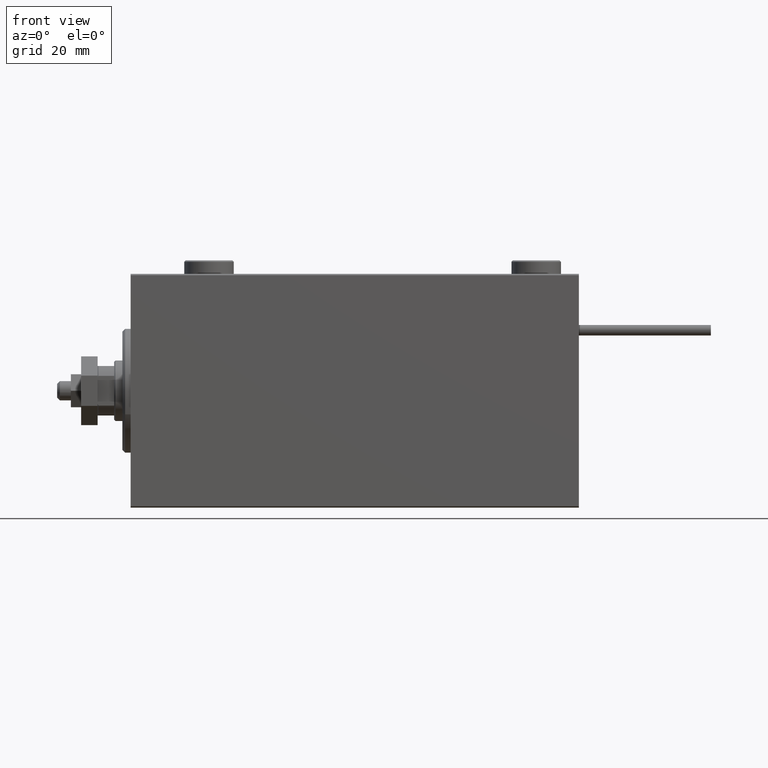
[diagram: clean part render]
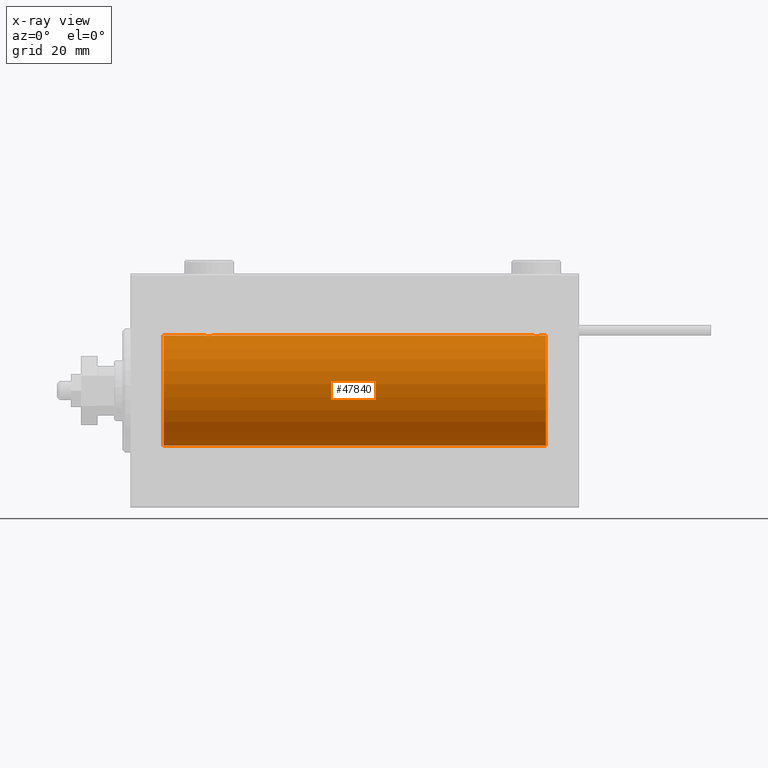
[diagram: x-ray — body ghosted, one internal face saturated and labeled with its STEP entity id]
A machine part, front view, then the same camera in x-ray: the body is ghosted and one INTERNAL B-rep face — a face not visible from any outside direction — is saturated and labeled: STEP entity #47840.
In plain terms, the highlighted cylindrical surface (partial cylindrical patch) has radius 20 mm, axis along (-1, -0, -0).
Its self-contained STEP definition (entity closure, byte-faithful):
#82 = CARTESIAN_POINT ( 'NONE',  ( 149.5000000000000284, -0.2610801504281899388, -19.99999999999999645 ) ) ;
#336 = CARTESIAN_POINT ( 'NONE',  ( 145.5000000000000853, -0.2644051013331212840, -20.00000000000000000 ) ) ;
#344 = CARTESIAN_POINT ( 'NONE',  ( 146.4969344366039934, -1.735203193119901455, 19.92471783160911158 ) ) ;
#347 = ORIENTED_EDGE ( 'NONE', *, *, #24758, .T. ) ;
#864 = CARTESIAN_POINT ( 'NONE',  ( 145.5524493711749869, -0.5243189001515030645, 19.99457699142850231 ) ) ;
#1109 = CARTESIAN_POINT ( 'NONE',  ( 149.5000000000000284, 2.449293582762473501E-15, -20.00000000000000000 ) ) ;
#1118 = CARTESIAN_POINT ( 'NONE',  ( 145.5000000000000568, -0.2610801504281917151, 20.00000000000000000 ) ) ;
#2348 = CARTESIAN_POINT ( 'NONE',  ( 30.50000000000000000, -9.453669475664189070E-16, 20.00000000000000000 ) ) ;
#2459 = EDGE_CURVE ( 'NONE', #35877, #26373, #29281, .T. ) ;
#2502 = ORIENTED_EDGE ( 'NONE', *, *, #29895, .T. ) ;
#2725 = CARTESIAN_POINT ( 'NONE',  ( 26.75174086539980678, -1.005710574260844092, 19.97614991974273835 ) ) ;
#2983 = CARTESIAN_POINT ( 'NONE',  ( 29.50067219139245367, -1.736582545981377734, 19.92459705242981371 ) ) ;
#3238 = CARTESIAN_POINT ( 'NONE',  ( 29.14348528733042443, -1.898187925611342974, 19.90978194174746818 ) ) ;
#4231 = CARTESIAN_POINT ( 'NONE',  ( 146.1790309315271372, -1.507328959728508666, -19.94333197382385947 ) ) ;
#4330 = DIRECTION ( 'NONE',  ( -1.000000000000000000, 0.000000000000000000, 0.000000000000000000 ) ) ;
#4495 = CARTESIAN_POINT ( 'NONE',  ( 146.2797105420553692, -1.589957321664216661, 19.93683391378736403 ) ) ;
#4764 = LINE ( 'NONE', #44671, #27440 ) ;
#4850 = ORIENTED_EDGE ( 'NONE', *, *, #32956, .F. ) ;
#4915 = AXIS2_PLACEMENT_3D ( 'NONE', #11994, #19049, #15141 ) ;
#5001 = CARTESIAN_POINT ( 'NONE',  ( 148.1463067392464552, -1.897222639860608906, -19.90987429971496070 ) ) ;
#5035 = DIRECTION ( 'NONE',  ( -1.000000000000000000, -0.000000000000000000, -0.000000000000000000 ) ) ;
#5630 = LINE ( 'NONE', #48678, #22607 ) ;
#5667 = CARTESIAN_POINT ( 'NONE',  ( 26.50000000000000711, -0.2644051013331055744, -19.99999999999999645 ) ) ;
#6154 = EDGE_CURVE ( 'NONE', #16546, #43886, #5630, .T. ) ;
#6640 = VERTEX_POINT ( 'NONE', #47535 ) ;
#6938 = VERTEX_POINT ( 'NONE', #50804 ) ;
#7222 = ORIENTED_EDGE ( 'NONE', *, *, #23415, .F. ) ;
#8041 = CARTESIAN_POINT ( 'NONE',  ( 30.50000000000000000, -0.2610801504281901053, -20.00000000000000000 ) ) ;
#8080 = VERTEX_POINT ( 'NONE', #12525 ) ;
#8140 = CARTESIAN_POINT ( 'NONE',  ( 146.6142092332927405, -1.797933656607938691, -19.91908554465557657 ) ) ;
#8409 = CARTESIAN_POINT ( 'NONE',  ( 146.1769333108053672, -1.505486175075782196, 19.94347168299868045 ) ) ;
#8556 = CARTESIAN_POINT ( 'NONE',  ( 28.76358144091414815, -1.986835489085816198, -19.90108393514801222 ) ) ;
#9789 = ORIENTED_EDGE ( 'NONE', *, *, #44115, .T. ) ;
#9826 = CARTESIAN_POINT ( 'NONE',  ( 27.98351467081095123, -1.936551476643008529, -19.90603968831098314 ) ) ;
#10543 = CARTESIAN_POINT ( 'NONE',  ( 26.90058475115969827, -1.228758402364238833, 19.96307487248084911 ) ) ;
#10791 = DIRECTION ( 'NONE',  ( 0.000000000000000000, 0.000000000000000000, 1.000000000000000000 ) ) ;
#11058 = FACE_OUTER_BOUND ( 'NONE', #28142, .T. ) ;
#11068 = CARTESIAN_POINT ( 'NONE',  ( 30.09774691554730808, -1.230936344679279593, 19.96293863536309487 ) ) ;
#11808 = DIRECTION ( 'NONE',  ( -1.000000000000000000, -0.000000000000000000, -0.000000000000000000 ) ) ;
#11994 = CARTESIAN_POINT ( 'NONE',  ( 12.00000000000001066, 0.000000000000000000, 0.000000000000000000 ) ) ;
#12525 = CARTESIAN_POINT ( 'NONE',  ( 26.50000000000000355, -1.552596590610734385E-23, 20.00000000000000000 ) ) ;
#12586 = CARTESIAN_POINT ( 'NONE',  ( 147.2364185590859620, -1.986835489085821527, 19.90108393514801932 ) ) ;
#12600 = DIRECTION ( 'NONE',  ( -1.000000000000000000, -0.000000000000000000, -0.000000000000000000 ) ) ;
#12740 = CARTESIAN_POINT ( 'NONE',  ( 29.72028945794465216, -1.589957321664210665, -19.93683391378736047 ) ) ;
#13097 = CARTESIAN_POINT ( 'NONE',  ( 149.0994152488403586, -1.228758402364252822, -19.96307487248083845 ) ) ;
#13106 = CARTESIAN_POINT ( 'NONE',  ( 149.5000000000000853, -0.2644051013331001343, 20.00000000000000711 ) ) ;
#13445 = VECTOR ( 'NONE', #35058, 1000.000000000000000 ) ;
#13507 = CARTESIAN_POINT ( 'NONE',  ( 28.36941128289166514, -2.000100592782555697, -19.89973863218036598 ) ) ;
#14205 = CARTESIAN_POINT ( 'NONE',  ( 29.38579076670728440, -1.797933656607920261, 19.91908554465558367 ) ) ;
#14470 = CARTESIAN_POINT ( 'NONE',  ( 149.5000000000000284, 6.438096668033870730E-15, 20.00000000000000000 ) ) ;
#14722 = CARTESIAN_POINT ( 'NONE',  ( 29.82096906847290896, -1.507328959728495121, 19.94333197382386302 ) ) ;
#15067 = B_SPLINE_CURVE_WITH_KNOTS ( 'NONE', 3,
 ( #20294, #8041, #40109, #36210, #16128, #16385, #12740, #44295, #28634, #32290, #28381, #8556, #24735, #13507, #45823, #9826, #29652, #29401, #29905, #37231, #17664, #49231, #25740, #45318, #5667, #21575 ),
 .UNSPECIFIED., .F., .F.,
 ( 4, 2, 2, 2, 2, 2, 2, 2, 2, 2, 2, 2, 4 ),
 ( 0.006256819553329837948, 0.007038738568778813223, 0.007820657584227789366, 0.008211617091952273101, 0.008602576599676756836, 0.008993536107401240570, 0.009384495615125724305, 0.009775455122850208040, 0.01016641463057469177, 0.01055737413829917551, 0.01094833364602365924, 0.01173025266147262498, 0.01251217167692159245 ),
 .UNSPECIFIED. ) ;
#15141 = DIRECTION ( 'NONE',  ( 0.000000000000000000, 0.000000000000000000, 1.000000000000000000 ) ) ;
#15964 = CARTESIAN_POINT ( 'NONE',  ( 147.3694112828916332, -2.000100592782568576, -19.89973863218036243 ) ) ;
#16128 = CARTESIAN_POINT ( 'NONE',  ( 30.09941524884030528, -1.228758402364235724, -19.96307487248084911 ) ) ;
#16221 = CARTESIAN_POINT ( 'NONE',  ( 145.5000000000000284, -1.510525576716094838E-14, -20.00000000000000000 ) ) ;
#16230 = CARTESIAN_POINT ( 'NONE',  ( 148.0164853291890950, -1.936551476643003200, 19.90603968831099024 ) ) ;
#16385 = CARTESIAN_POINT ( 'NONE',  ( 29.82306668919470027, -1.505486175075773314, -19.94347168299866979 ) ) ;
#16546 = VERTEX_POINT ( 'NONE', #21448 ) ;
#16583 = ORIENTED_EDGE ( 'NONE', *, *, #2459, .T. ) ;
#16599 = DIRECTION ( 'NONE',  ( -1.000000000000000000, -0.000000000000000000, -0.000000000000000000 ) ) ;
#16746 = CARTESIAN_POINT ( 'NONE',  ( 146.6117056279291262, -1.796691196322318218, 19.91919800395357143 ) ) ;
#17008 = CARTESIAN_POINT ( 'NONE',  ( 145.9005847511597835, -1.228758402364247049, 19.96307487248084911 ) ) ;
#17664 = CARTESIAN_POINT ( 'NONE',  ( 27.17903093152711591, -1.507328959728495787, -19.94333197382386302 ) ) ;
#18114 = CARTESIAN_POINT ( 'NONE',  ( 26.50000000000001421, -0.2610801504281932695, 20.00000000000000000 ) ) ;
#18187 = VERTEX_POINT ( 'NONE', #14470 ) ;
#18367 = CARTESIAN_POINT ( 'NONE',  ( 26.55244937117491943, -0.5243189001515041747, 19.99457699142850231 ) ) ;
#19049 = DIRECTION ( 'NONE',  ( -1.000000000000000000, 0.000000000000000000, 0.000000000000000000 ) ) ;
#19818 = CARTESIAN_POINT ( 'NONE',  ( 151.0000000000000000, 0.000000000000000000, 20.00000000000000000 ) ) ;
#19855 = CARTESIAN_POINT ( 'NONE',  ( 145.5000000000000284, -1.510525576716094838E-14, -20.00000000000000000 ) ) ;
#19876 = CARTESIAN_POINT ( 'NONE',  ( 148.8230666891947465, -1.505486175075791966, -19.94347168299867690 ) ) ;
#19884 = CARTESIAN_POINT ( 'NONE',  ( 148.3857907667072595, -1.797933656607917152, 19.91908554465558367 ) ) ;
#20129 = CARTESIAN_POINT ( 'NONE',  ( 145.9022530844526955, -1.230936344679295136, -19.96293863536308422 ) ) ;
#20139 = CARTESIAN_POINT ( 'NONE',  ( 145.5000000000000284, -1.553188236289650144E-23, 20.00000000000000000 ) ) ;
#20294 = CARTESIAN_POINT ( 'NONE',  ( 30.50000000000000000, 2.449293582768389958E-15, -20.00000000000000000 ) ) ;
#20598 = EDGE_CURVE ( 'NONE', #6938, #18187, #44521, .T. ) ;
#20909 = CARTESIAN_POINT ( 'NONE',  ( 148.0192351213528070, -1.935816449315140408, -19.90611141657402072 ) ) ;
#20918 = CARTESIAN_POINT ( 'NONE',  ( 148.5006721913924252, -1.736582545981380177, 19.92459705242980661 ) ) ;
#20946 = CARTESIAN_POINT ( 'NONE',  ( 151.0000000000000000, 2.449293598294706513E-15, -20.00000000000000000 ) ) ;
#21448 = CARTESIAN_POINT ( 'NONE',  ( 151.0000000000000000, 2.449293598294706513E-15, -20.00000000000000000 ) ) ;
#21575 = CARTESIAN_POINT ( 'NONE',  ( 26.50000000000000355, -6.257798774011376898E-15, -20.00000000000000000 ) ) ;
#22023 = CARTESIAN_POINT ( 'NONE',  ( 27.17693331080529973, -1.505486175075776645, 19.94347168299866979 ) ) ;
#22487 = CIRCLE ( 'NONE', #25800, 20.00000000000000000 ) ;
#22607 = VECTOR ( 'NONE', #16599, 1000.000000000000000 ) ;
#23322 = CARTESIAN_POINT ( 'NONE',  ( 151.0000000000000000, 0.000000000000000000, 20.00000000000000000 ) ) ;
#23415 = EDGE_CURVE ( 'NONE', #6640, #18187, #27642, .T. ) ;
#23772 = B_SPLINE_CURVE_WITH_KNOTS ( 'NONE', 3,
 ( #1109, #82, #24314, #24830, #13097, #19876, #32388, #40730, #28988, #5001, #20909, #35781, #48302, #15964, #31869, #27960, #47790, #8140, #24054, #39954, #4231, #20129, #36043, #28218, #336, #16221 ),
 .UNSPECIFIED., .F., .F.,
 ( 4, 2, 2, 2, 2, 2, 2, 2, 2, 2, 2, 2, 4 ),
 ( 0.006256819553329819733, 0.007038738568778733426, 0.007820657584227647119, 0.008211617091952132588, 0.008602576599676618058, 0.008993536107401105262, 0.009384495615125590731, 0.009775455122850077935, 0.01016641463057456340, 0.01055737413829905061, 0.01094833364602353781, 0.01173025266147256773, 0.01251217167692160112 ),
 .UNSPECIFIED. ) ;
#23881 = CARTESIAN_POINT ( 'NONE',  ( 12.00000000000001066, 2.449293598294706513E-15, -20.00000000000000000 ) ) ;
#23994 = DIRECTION ( 'NONE',  ( -1.000000000000000000, -0.000000000000000000, -0.000000000000000000 ) ) ;
#24054 = CARTESIAN_POINT ( 'NONE',  ( 146.4993278086076600, -1.736582545981393277, -19.92459705242980661 ) ) ;
#24314 = CARTESIAN_POINT ( 'NONE',  ( 149.4475506288250699, -0.5243189001515055070, -19.99457699142850231 ) ) ;
#24583 = CARTESIAN_POINT ( 'NONE',  ( 147.3663480385754951, -1.999898234284065657, 19.89975896996866211 ) ) ;
#24735 = CARTESIAN_POINT ( 'NONE',  ( 28.63365196142447644, -1.999898234284065657, -19.89975896996865856 ) ) ;
#24758 = EDGE_CURVE ( 'NONE', #43886, #37817, #23772, .T. ) ;
#24830 = CARTESIAN_POINT ( 'NONE',  ( 149.2482591346002039, -1.005710574260847645, -19.97614991974274190 ) ) ;
#25381 = AXIS2_PLACEMENT_3D ( 'NONE', #30348, #27221, #10791 ) ;
#25740 = CARTESIAN_POINT ( 'NONE',  ( 26.75313023696928738, -1.008108445278691478, -19.97602680192586533 ) ) ;
#25800 = AXIS2_PLACEMENT_3D ( 'NONE', #27806, #4330, #28580 ) ;
#25942 = CARTESIAN_POINT ( 'NONE',  ( 28.63058871710834552, -2.000100592782559250, 19.89973863218036598 ) ) ;
#26373 = VERTEX_POINT ( 'NONE', #23881 ) ;
#26453 = CARTESIAN_POINT ( 'NONE',  ( 29.71805419472152110, -1.591668229360197806, 19.93669678979812687 ) ) ;
#26710 = CARTESIAN_POINT ( 'NONE',  ( 28.36634803857551290, -1.999898234284068321, 19.89975896996865856 ) ) ;
#26977 = CARTESIAN_POINT ( 'NONE',  ( 30.44679484191798124, -0.5270924491156695479, 19.99450181871975829 ) ) ;
#27221 = DIRECTION ( 'NONE',  ( -1.000000000000000000, -0.000000000000000000, -0.000000000000000000 ) ) ;
#27440 = VECTOR ( 'NONE', #12600, 1000.000000000000000 ) ;
#27642 = LINE ( 'NONE', #19818, #43904 ) ;
#27688 = EDGE_CURVE ( 'NONE', #26373, #41825, #42368, .T. ) ;
#27806 = CARTESIAN_POINT ( 'NONE',  ( 151.0000000000000000, 0.000000000000000000, 0.000000000000000000 ) ) ;
#27960 = CARTESIAN_POINT ( 'NONE',  ( 146.9835146708108766, -1.936551476643014080, -19.90603968831098669 ) ) ;
#28142 = EDGE_LOOP ( 'NONE', ( #4850, #35215, #347, #2502, #33291, #16583, #37448, #49576, #9789, #49102, #44847, #7222 ) ) ;
#28218 = CARTESIAN_POINT ( 'NONE',  ( 145.5532051580820507, -0.5270924491156762093, -19.99450181871976184 ) ) ;
#28227 = CARTESIAN_POINT ( 'NONE',  ( 149.4467948419180345, -0.5270924491156583347, 19.99450181871976184 ) ) ;
#28381 = CARTESIAN_POINT ( 'NONE',  ( 29.01923512135277150, -1.935816449315127308, -19.90611141657401362 ) ) ;
#28494 = CARTESIAN_POINT ( 'NONE',  ( 148.8209690684728912, -1.507328959728495121, 19.94333197382385592 ) ) ;
#28580 = DIRECTION ( 'NONE',  ( 0.000000000000000000, 0.000000000000000000, 1.000000000000000000 ) ) ;
#28634 = CARTESIAN_POINT ( 'NONE',  ( 29.38829437207092354, -1.796691196322319994, -19.91919800395357498 ) ) ;
#28988 = CARTESIAN_POINT ( 'NONE',  ( 148.3882943720709306, -1.796691196322330653, -19.91919800395357143 ) ) ;
#29281 = LINE ( 'NONE', #20946, #49029 ) ;
#29401 = CARTESIAN_POINT ( 'NONE',  ( 27.61420923329272981, -1.797933656607920039, -19.91908554465558367 ) ) ;
#29652 = CARTESIAN_POINT ( 'NONE',  ( 27.85651471266958978, -1.898187925611340976, -19.90978194174746818 ) ) ;
#29895 = EDGE_CURVE ( 'NONE', #37817, #39364, #42856, .T. ) ;
#29905 = CARTESIAN_POINT ( 'NONE',  ( 27.49932780860757475, -1.736582545981378845, -19.92459705242981371 ) ) ;
#30101 = CARTESIAN_POINT ( 'NONE',  ( 30.24686976303072328, -1.008108445278688148, 19.97602680192586533 ) ) ;
#30348 = CARTESIAN_POINT ( 'NONE',  ( 151.0000000000000000, 0.000000000000000000, 0.000000000000000000 ) ) ;
#30358 = CARTESIAN_POINT ( 'NONE',  ( 27.49693443660398273, -1.735203193119900344, 19.92471783160911158 ) ) ;
#31069 = CARTESIAN_POINT ( 'NONE',  ( 26.50000000000000355, -6.257798774011376898E-15, -20.00000000000000000 ) ) ;
#31103 = EDGE_CURVE ( 'NONE', #8080, #41825, #4764, .T. ) ;
#31660 = LINE ( 'NONE', #23322, #13445 ) ;
#31869 = CARTESIAN_POINT ( 'NONE',  ( 147.2392274396843277, -1.987205673487821178, -19.90104673894210308 ) ) ;
#32290 = CARTESIAN_POINT ( 'NONE',  ( 29.14630673924644100, -1.897222639860597360, -19.90987429971497136 ) ) ;
#32388 = CARTESIAN_POINT ( 'NONE',  ( 148.7202894579446877, -1.589957321664208001, -19.93683391378736403 ) ) ;
#32399 = CARTESIAN_POINT ( 'NONE',  ( 145.7517408653998245, -1.005710574260844758, 19.97614991974274190 ) ) ;
#32658 = CARTESIAN_POINT ( 'NONE',  ( 147.7607725603157576, -1.987205673487809854, 19.90104673894210308 ) ) ;
#32919 = CARTESIAN_POINT ( 'NONE',  ( 148.1434852873304635, -1.898187925611338978, 19.90978194174746818 ) ) ;
#32956 = EDGE_CURVE ( 'NONE', #16546, #6640, #22487, .T. ) ;
#33291 = ORIENTED_EDGE ( 'NONE', *, *, #43733, .T. ) ;
#34013 = CARTESIAN_POINT ( 'NONE',  ( 26.50000000000000355, -1.552596590610734385E-23, 20.00000000000000000 ) ) ;
#34271 = CARTESIAN_POINT ( 'NONE',  ( 27.61170562792909777, -1.796691196322324213, 19.91919800395357498 ) ) ;
#34304 = VERTEX_POINT ( 'NONE', #2348 ) ;
#34507 = CARTESIAN_POINT ( 'NONE',  ( 151.0000000000000000, 2.449293598294706513E-15, -20.00000000000000000 ) ) ;
#34532 = CARTESIAN_POINT ( 'NONE',  ( 28.76077256031568652, -1.987205673487814739, 19.90104673894211018 ) ) ;
#34907 = CARTESIAN_POINT ( 'NONE',  ( 12.00000000000001066, 0.000000000000000000, 20.00000000000000000 ) ) ;
#34961 = VECTOR ( 'NONE', #11808, 1000.000000000000000 ) ;
#35058 = DIRECTION ( 'NONE',  ( -1.000000000000000000, -0.000000000000000000, -0.000000000000000000 ) ) ;
#35215 = ORIENTED_EDGE ( 'NONE', *, *, #6154, .T. ) ;
#35781 = CARTESIAN_POINT ( 'NONE',  ( 147.7635814409141517, -1.986835489085827966, -19.90108393514800511 ) ) ;
#35875 = CARTESIAN_POINT ( 'NONE',  ( 149.5000000000000284, 2.449293582762473501E-15, -20.00000000000000000 ) ) ;
#35877 = VERTEX_POINT ( 'NONE', #31069 ) ;
#36043 = CARTESIAN_POINT ( 'NONE',  ( 145.7531302369693265, -1.008108445278692589, -19.97602680192585822 ) ) ;
#36210 = CARTESIAN_POINT ( 'NONE',  ( 30.24825913460018256, -1.005710574260840096, -19.97614991974273835 ) ) ;
#36317 = CARTESIAN_POINT ( 'NONE',  ( 149.2468697630307872, -1.008108445278674825, 19.97602680192586888 ) ) ;
#36833 = CARTESIAN_POINT ( 'NONE',  ( 147.6305887171084237, -2.000100592782557474, 19.89973863218036243 ) ) ;
#37231 = CARTESIAN_POINT ( 'NONE',  ( 27.28194580527850022, -1.591668229360200026, -19.93669678979812687 ) ) ;
#37448 = ORIENTED_EDGE ( 'NONE', *, *, #27688, .T. ) ;
#37477 = CYLINDRICAL_SURFACE ( 'NONE', #25381, 20.00000000000000000 ) ;
#37817 = VERTEX_POINT ( 'NONE', #19855 ) ;
#39338 = EDGE_CURVE ( 'NONE', #6938, #34304, #31660, .T. ) ;
#39364 = VERTEX_POINT ( 'NONE', #51226 ) ;
#39954 = CARTESIAN_POINT ( 'NONE',  ( 146.2819458052784682, -1.591668229360214903, -19.93669678979811977 ) ) ;
#40109 = CARTESIAN_POINT ( 'NONE',  ( 30.44755062882508412, -0.5243189001515006220, -19.99457699142850231 ) ) ;
#40223 = CARTESIAN_POINT ( 'NONE',  ( 146.8536932607536016, -1.897222639860597360, 19.90987429971496780 ) ) ;
#40730 = CARTESIAN_POINT ( 'NONE',  ( 148.5030655633960066, -1.735203193119897014, -19.92471783160911158 ) ) ;
#41825 = VERTEX_POINT ( 'NONE', #34907 ) ;
#42365 = CARTESIAN_POINT ( 'NONE',  ( 27.27971054205535495, -1.589957321664213552, 19.93683391378736047 ) ) ;
#42368 = CIRCLE ( 'NONE', #4915, 20.00000000000000000 ) ;
#42623 = CARTESIAN_POINT ( 'NONE',  ( 30.50000000000000000, -9.453669475664189070E-16, 20.00000000000000000 ) ) ;
#42856 = LINE ( 'NONE', #34507, #34961 ) ;
#43623 = CARTESIAN_POINT ( 'NONE',  ( 149.5000000000000284, 6.438096668033870730E-15, 20.00000000000000000 ) ) ;
#43699 = B_SPLINE_CURVE_WITH_KNOTS ( 'NONE', 3,
 ( #34013, #18114, #18367, #2725, #10543, #22023, #42365, #30358, #34271, #46800, #45765, #50955, #26710, #25942, #34532, #50443, #3238, #14205, #2983, #26453, #14722, #11068, #30101, #26977, #46534, #42623 ),
 .UNSPECIFIED., .F., .F.,
 ( 4, 2, 2, 2, 2, 2, 2, 2, 2, 2, 2, 2, 4 ),
 ( 0.006256819553329818866, 0.007038738568778795009, 0.007820657584227770284, 0.008211617091952255754, 0.008602576599676739488, 0.008993536107401223223, 0.009384495615125706958, 0.009775455122850190692, 0.01016641463057467443, 0.01055737413829915816, 0.01094833364602364190, 0.01173025266147261110, 0.01251217167692157857 ),
 .UNSPECIFIED. ) ;
#43733 = EDGE_CURVE ( 'NONE', #39364, #35877, #15067, .T. ) ;
#43886 = VERTEX_POINT ( 'NONE', #35875 ) ;
#43904 = VECTOR ( 'NONE', #23994, 1000.000000000000000 ) ;
#44115 = EDGE_CURVE ( 'NONE', #8080, #34304, #43699, .T. ) ;
#44295 = CARTESIAN_POINT ( 'NONE',  ( 29.50306556339602082, -1.735203193119896348, -19.92471783160911158 ) ) ;
#44521 = B_SPLINE_CURVE_WITH_KNOTS ( 'NONE', 3,
 ( #20139, #1118, #864, #32399, #17008, #8409, #4495, #344, #16746, #40223, #48310, #12586, #24583, #36833, #32658, #16230, #32919, #19884, #20918, #48572, #28494, #48826, #36317, #28227, #13106, #43623 ),
 .UNSPECIFIED., .F., .F.,
 ( 4, 2, 2, 2, 2, 2, 2, 2, 2, 2, 2, 2, 4 ),
 ( 0.006256819553329832743, 0.007038738568778792407, 0.007820657584227751202, 0.008211617091952231468, 0.008602576599676711733, 0.008993536107401190263, 0.009384495615125668794, 0.009775455122850149059, 0.01016641463057462759, 0.01055737413829910612, 0.01094833364602358639, 0.01173025266147260243, 0.01251217167692161847 ),
 .UNSPECIFIED. ) ;
#44671 = CARTESIAN_POINT ( 'NONE',  ( 151.0000000000000000, 0.000000000000000000, 20.00000000000000000 ) ) ;
#44847 = ORIENTED_EDGE ( 'NONE', *, *, #20598, .T. ) ;
#45318 = CARTESIAN_POINT ( 'NONE',  ( 26.55320515808203297, -0.5270924491156746550, -19.99450181871975829 ) ) ;
#45765 = CARTESIAN_POINT ( 'NONE',  ( 27.98076487864723561, -1.935816449315131749, 19.90611141657401362 ) ) ;
#45823 = CARTESIAN_POINT ( 'NONE',  ( 28.23922743968432414, -1.987205673487811630, -19.90104673894211018 ) ) ;
#46534 = CARTESIAN_POINT ( 'NONE',  ( 30.50000000000000000, -0.2644051013330992461, 19.99999999999999645 ) ) ;
#46800 = CARTESIAN_POINT ( 'NONE',  ( 27.85369326075355190, -1.897222639860601578, 19.90987429971495715 ) ) ;
#47535 = CARTESIAN_POINT ( 'NONE',  ( 151.0000000000000000, 0.000000000000000000, 20.00000000000000000 ) ) ;
#47790 = CARTESIAN_POINT ( 'NONE',  ( 146.8565147126696218, -1.898187925611359850, -19.90978194174746463 ) ) ;
#47840 = ADVANCED_FACE ( 'NONE', ( #11058 ), #37477, .F. ) ;
#48302 = CARTESIAN_POINT ( 'NONE',  ( 147.6336519614245617, -1.999898234284076981, -19.89975896996866211 ) ) ;
#48310 = CARTESIAN_POINT ( 'NONE',  ( 146.9807648786472782, -1.935816449315135523, 19.90611141657401006 ) ) ;
#48572 = CARTESIAN_POINT ( 'NONE',  ( 148.7180541947215602, -1.591668229360202025, 19.93669678979812332 ) ) ;
#48678 = CARTESIAN_POINT ( 'NONE',  ( 151.0000000000000000, 2.449293598294706513E-15, -20.00000000000000000 ) ) ;
#48826 = CARTESIAN_POINT ( 'NONE',  ( 149.0977469155473045, -1.230936344679282257, 19.96293863536309843 ) ) ;
#49029 = VECTOR ( 'NONE', #5035, 1000.000000000000000 ) ;
#49102 = ORIENTED_EDGE ( 'NONE', *, *, #39338, .F. ) ;
#49231 = CARTESIAN_POINT ( 'NONE',  ( 26.90225308445270613, -1.230936344679281369, -19.96293863536309487 ) ) ;
#49576 = ORIENTED_EDGE ( 'NONE', *, *, #31103, .F. ) ;
#50443 = CARTESIAN_POINT ( 'NONE',  ( 29.01648532918905232, -1.936551476643010528, 19.90603968831098314 ) ) ;
#50804 = CARTESIAN_POINT ( 'NONE',  ( 145.5000000000000284, -1.553188236289650144E-23, 20.00000000000000000 ) ) ;
#50955 = CARTESIAN_POINT ( 'NONE',  ( 28.23641855908585541, -1.986835489085820194, 19.90108393514801222 ) ) ;
#51226 = CARTESIAN_POINT ( 'NONE',  ( 30.50000000000000000, 2.449293582768389958E-15, -20.00000000000000000 ) ) ;